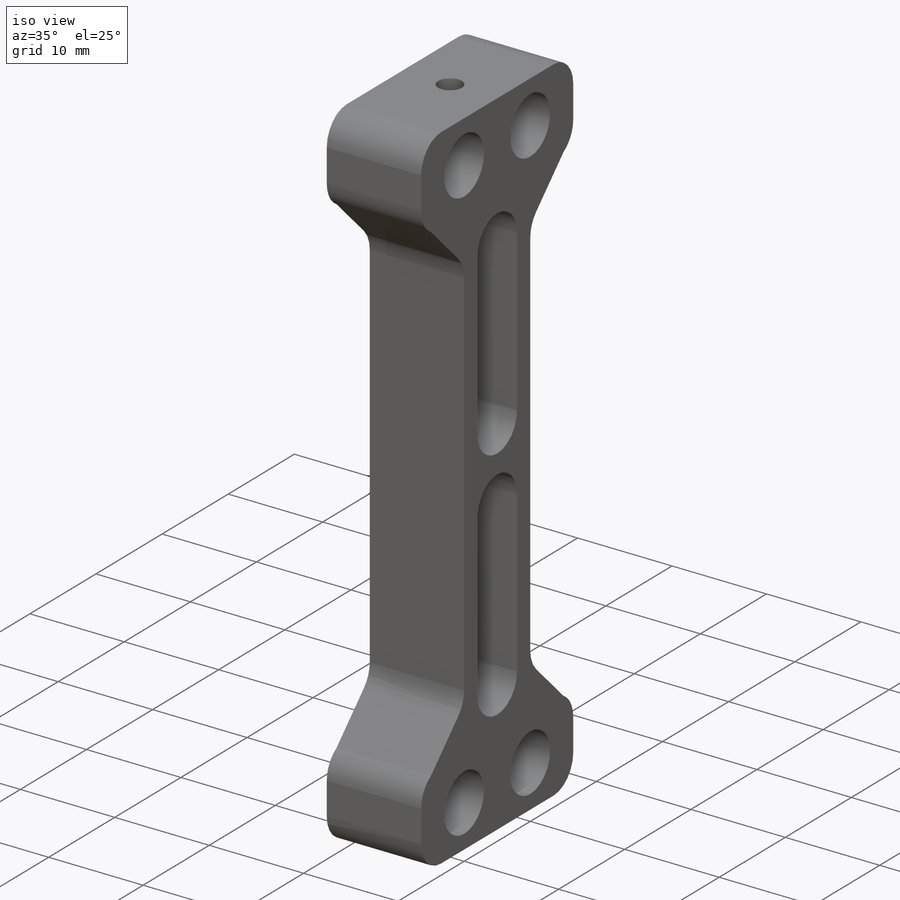
[diagram: iso view]
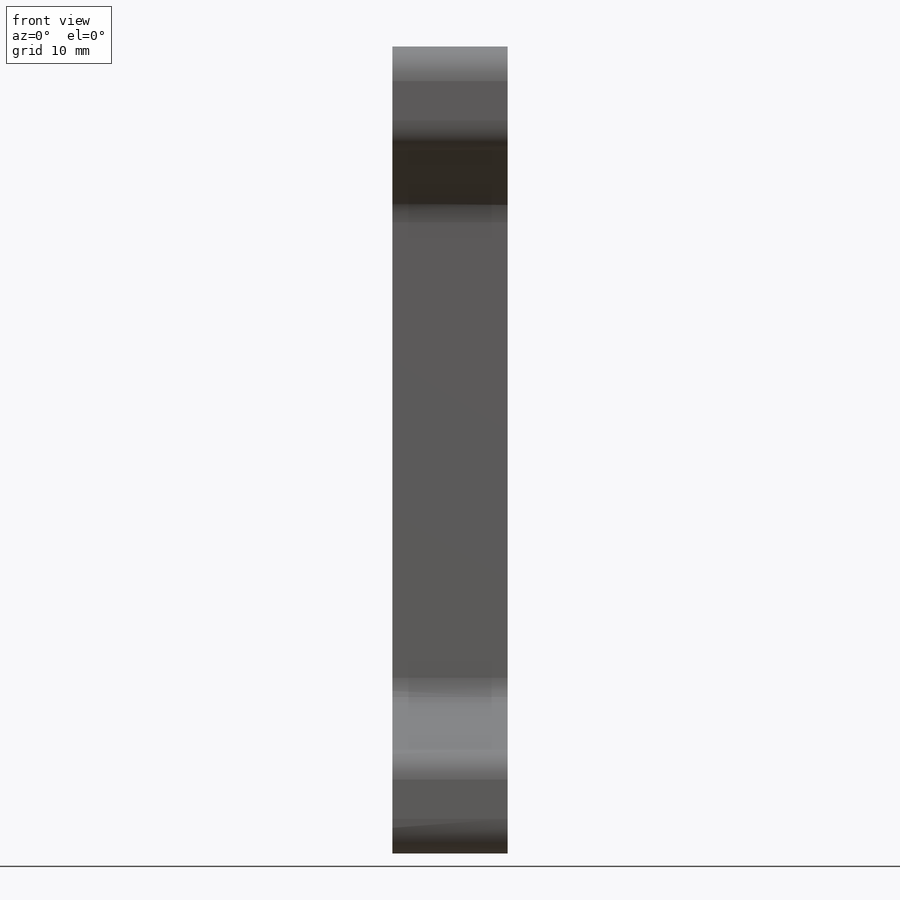
[diagram: front view]
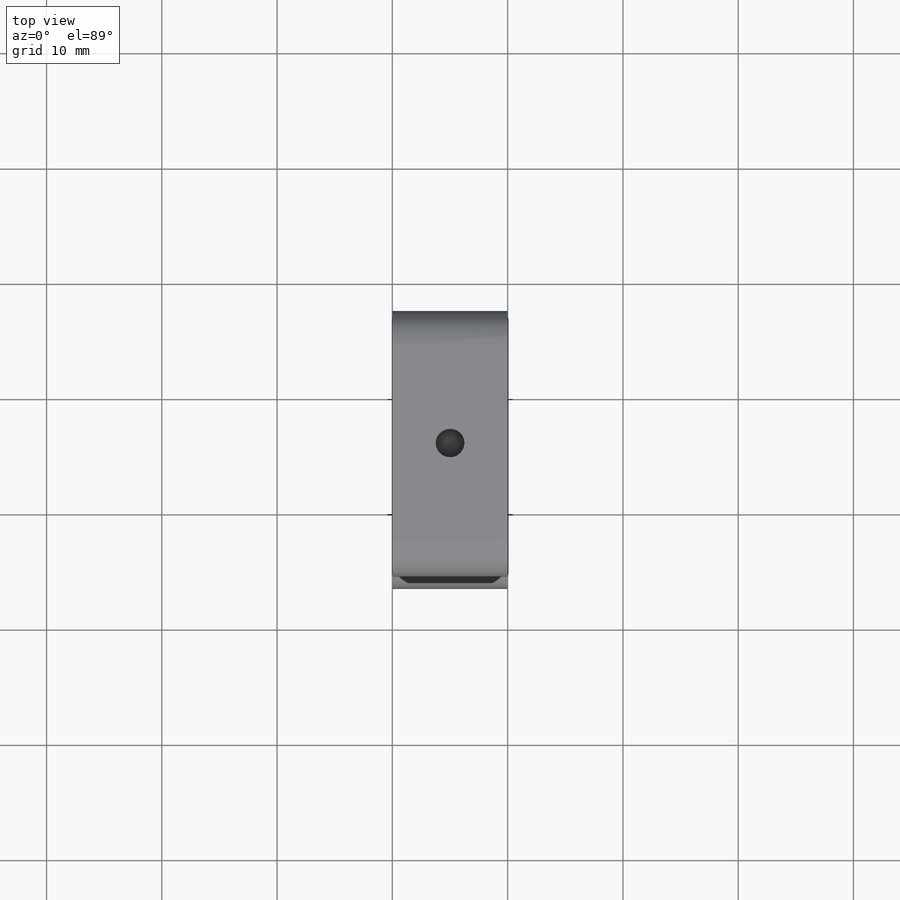
[diagram: top view]
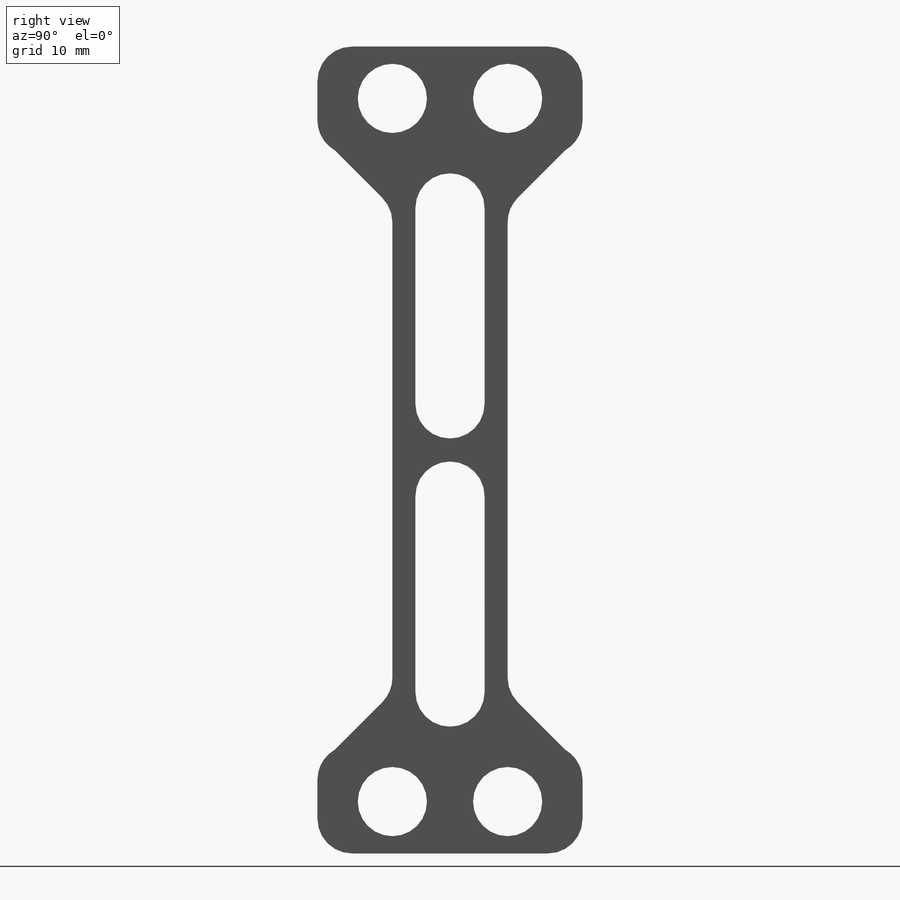
[diagram: right view]
SOLIDWORKS PART (.sldprt)
format: sldprt  version: not decoded by parser v0  size: 461,824 bytes
history: native  units: mm
features: sketch x8, thread x5, hole x3, fillet x2, material x1, extrude x1, chamfer x1, cut_extrude x1 (+12 scaffold rows collapsed)
feature tree (34):
  scaffold x12  (default folders/planes/origin — collapsed)
  material  "7050-T73510"
  sketch  "Sketch1"  dims[c1.D1=9.0mm c1.D2=9.0mm c1.D3=6.0mm c1.D4=6.0mm c1.D7=3.0mm c1.D8=3.0mm c1.D14=9.0mm c2.D3=~9.930807mm c2.D5=10.0mm c2.D6=61.0mm c2.D7=~2.05121mm c2.D8=~25.618156mm c2.D9=17.0mm c2.D10=17.0mm c2.D11=4.0mm c2.D12=4.0mm c2.D13=2.0mm c2.D2=4.5mm]
  extrude  "Boss-Extrude1"  Depth=10mm
  chamfer  "Chamfer1"  Distance=5mm Angle=45deg
  fillet  "Fillet1"  Radius=3mm
  sketch  "Sketch4"  dims[D1=8.0mm D2=4.5mm D3=~1.301802mm]
  cut_extrude  "Cut-Extrude1"  Depth=10mm
  fillet  "Fillet2"  Radius=1.5mm
  hole  "M3 Tapped Hole1"  Diameter=2.5mm Depth=17.5mm
  sketch  "Sketch6"  dims[D1=5.0mm D2=3.5mm D3=3.5mm]
  sketch  "Sketch5"  dims[hole-wizard template sketch: 47 standard entries collapsed; hole parameters kept: c15.Tap Drill Depth=17.5mm c15.D3=~14.816244mm c15.Drill Angle=118.0deg]
  thread  "Hole Thread1"  Diameter=4.5mm  [1 undecoded]
  thread  "Hole Thread2"  Diameter=4.5mm  [1 undecoded]
  hole  "M3 Tapped Hole2"  Diameter=2.5mm Depth=7.5mm
  sketch  "Sketch8"  dims[D1=23.0mm]
  sketch  "Sketch7"  dims[hole-wizard template sketch: 50 standard entries collapsed; hole parameters above]
  thread  "Hole Thread3"  Diameter=7.5mm  [1 undecoded]
  hole  "M3 Tapped Hole3"  Diameter=2.5mm Depth=7.5mm
  sketch  "3DSketch1"  dims[D1=5.0mm D2=5.0mm D3=11.5mm D4=11.5mm]
  sketch  "Sketch11"  dims[hole-wizard template sketch: 50 standard entries collapsed; hole parameters above]
  thread  "Hole Thread4"  Diameter=6mm  [1 undecoded]
  thread  "Hole Thread5"  Diameter=6mm  [1 undecoded]
decode coverage: 21 of 21 modeling features carry decoded parameters
note: ~ marks probable driven/reference dimensions
note: 5 parameter values undecoded
note: suppression state not decoded; provenance and decode notes live in map.json
